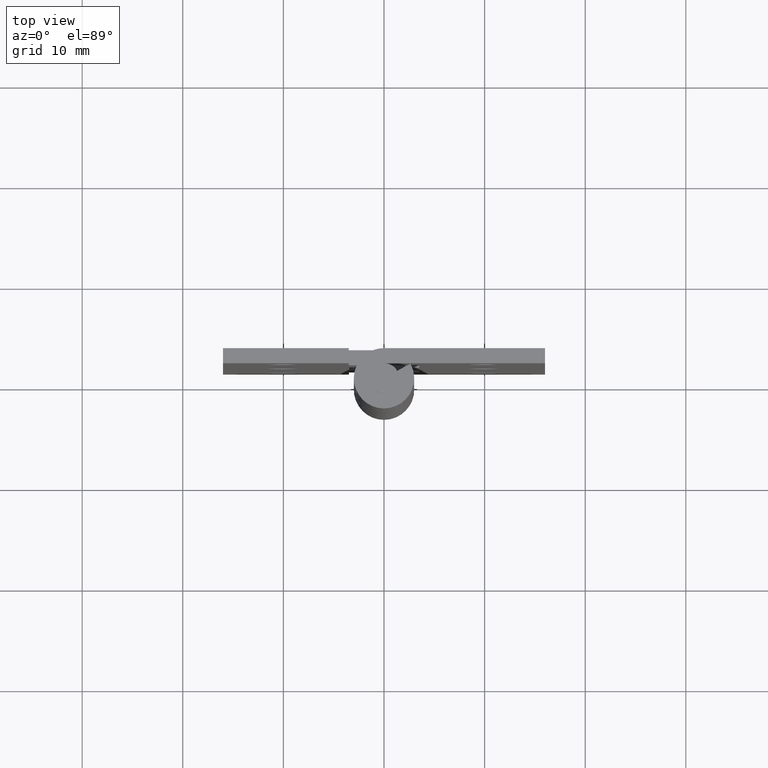
[diagram: clean part render]
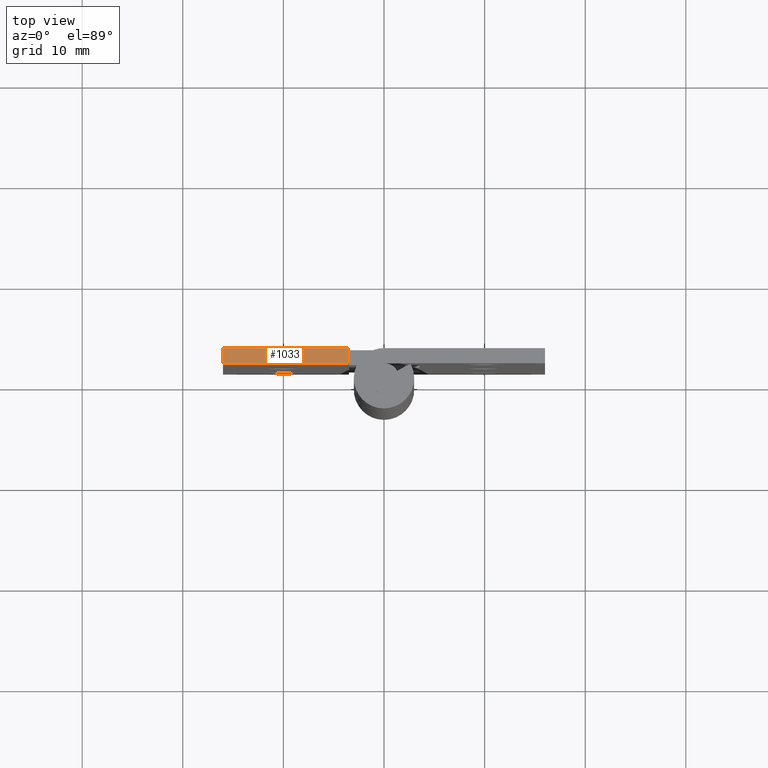
[diagram: same view with one face highlighted and labeled with its STEP entity id]
A machine part, top view. The second image highlights one B-rep face of the part: STEP entity #1033.
In plain terms, the highlighted face is a freeform B-spline surface patch.
Its self-contained STEP definition (entity closure, byte-faithful):
#886=CARTESIAN_POINT('',(-3.500000000000100,3.0,65.0));
#887=VERTEX_POINT('',#886);
#893=CARTESIAN_POINT('',(-3.500000000000100,1.499999999999946,65.0));
#894=VERTEX_POINT('',#893);
#895=CARTESIAN_POINT('',(-3.500000000000100,1.499999999999946,65.0));
#896=CARTESIAN_POINT('',(-3.500000000000100,3.0,65.0));
#897=QUASI_UNIFORM_CURVE('',1,(#895,#896),.UNSPECIFIED.,.F.,.U.);
#898=EDGE_CURVE('',#894,#887,#897,.T.);
#983=CARTESIAN_POINT('',(-16.0,3.0,65.0));
#984=VERTEX_POINT('',#983);
#985=CARTESIAN_POINT('',(-16.0,1.500000000000000,65.0));
#986=VERTEX_POINT('',#985);
#987=CARTESIAN_POINT('',(-16.0,3.0,65.0));
#988=CARTESIAN_POINT('',(-16.0,1.500000000000000,65.0));
#989=QUASI_UNIFORM_CURVE('',1,(#987,#988),.UNSPECIFIED.,.F.,.U.);
#990=EDGE_CURVE('',#984,#986,#989,.T.);
#1014=CARTESIAN_POINT('',(-16.624374975772572,1.425075002907234,65.0));
#1015=CARTESIAN_POINT('',(-2.875624688951403,1.425075002907234,65.0));
#1016=CARTESIAN_POINT('',(-16.624374975772572,3.074925037325847,65.0));
#1017=CARTESIAN_POINT('',(-2.875624688951403,3.074925037325847,65.0));
#1018=B_SPLINE_SURFACE_WITH_KNOTS('',1,1,((#1014,#1016),(#1015,#1017)),.UNSPECIFIED.,.F.,.F.,.U.,(2,2),(2,2),(0.0,13.748750286821171),(0.041708334948495,0.958291687403247),.UNSPECIFIED.);
#1019=ORIENTED_EDGE('',*,*,#898,.T.);
#1020=CARTESIAN_POINT('',(-3.500000000000100,3.0,65.0));
#1021=CARTESIAN_POINT('',(-16.0,3.0,65.0));
#1022=QUASI_UNIFORM_CURVE('',1,(#1020,#1021),.UNSPECIFIED.,.F.,.U.);
#1023=EDGE_CURVE('',#887,#984,#1022,.T.);
#1024=ORIENTED_EDGE('',*,*,#1023,.T.);
#1025=ORIENTED_EDGE('',*,*,#990,.T.);
#1026=CARTESIAN_POINT('',(-16.0,1.500000000000000,65.0));
#1027=CARTESIAN_POINT('',(-3.500000000000100,1.499999999999946,65.0));
#1028=QUASI_UNIFORM_CURVE('',1,(#1026,#1027),.UNSPECIFIED.,.F.,.U.);
#1029=EDGE_CURVE('',#986,#894,#1028,.T.);
#1030=ORIENTED_EDGE('',*,*,#1029,.T.);
#1031=EDGE_LOOP('',(#1019,#1024,#1025,#1030));
#1032=FACE_OUTER_BOUND('',#1031,.T.);
#1033=ADVANCED_FACE('',(#1032),#1018,.T.);